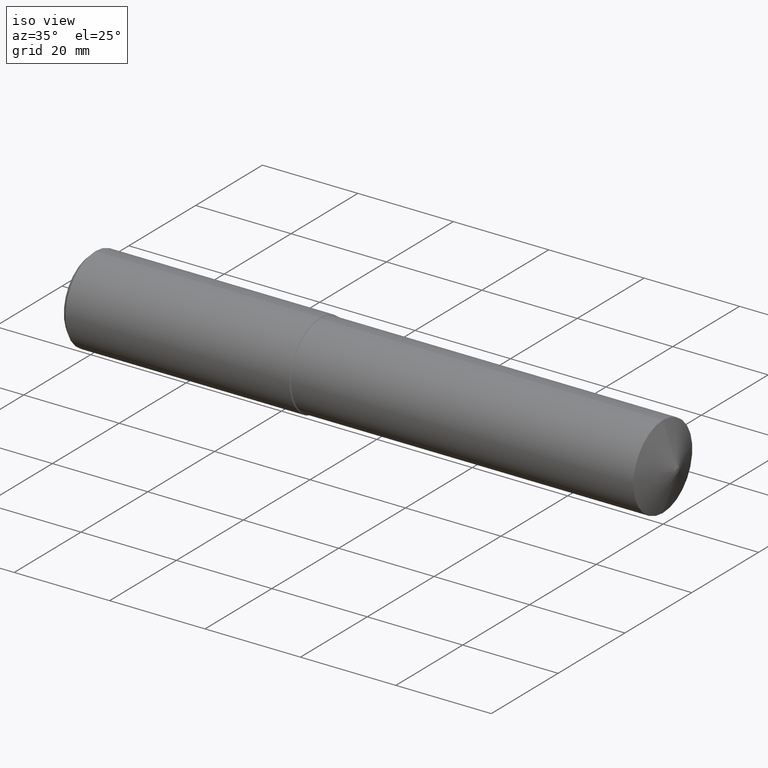
[diagram: clean part render]
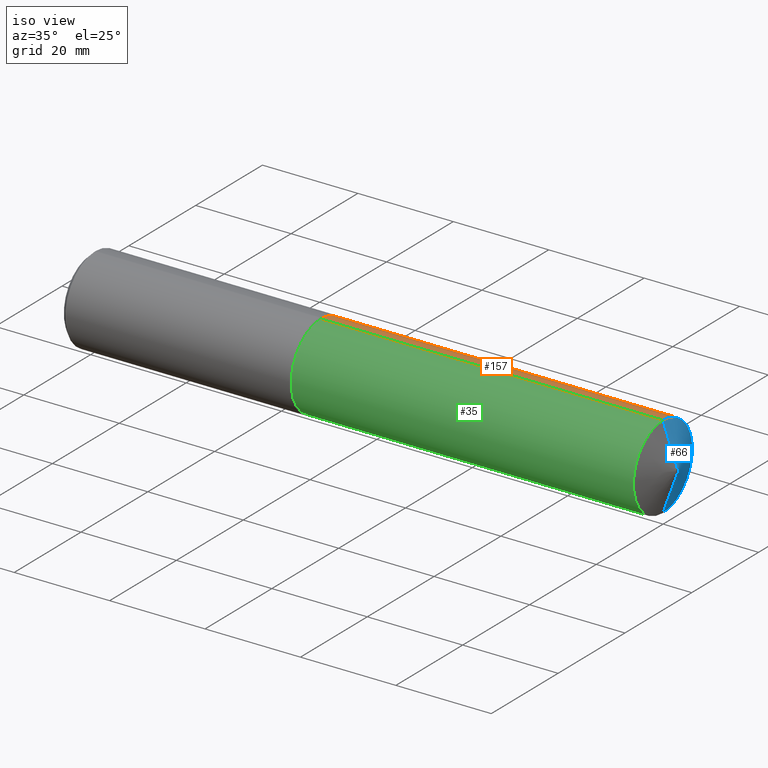
[diagram: same view with three faces highlighted in distinct colors, each labeled with its STEP entity id]
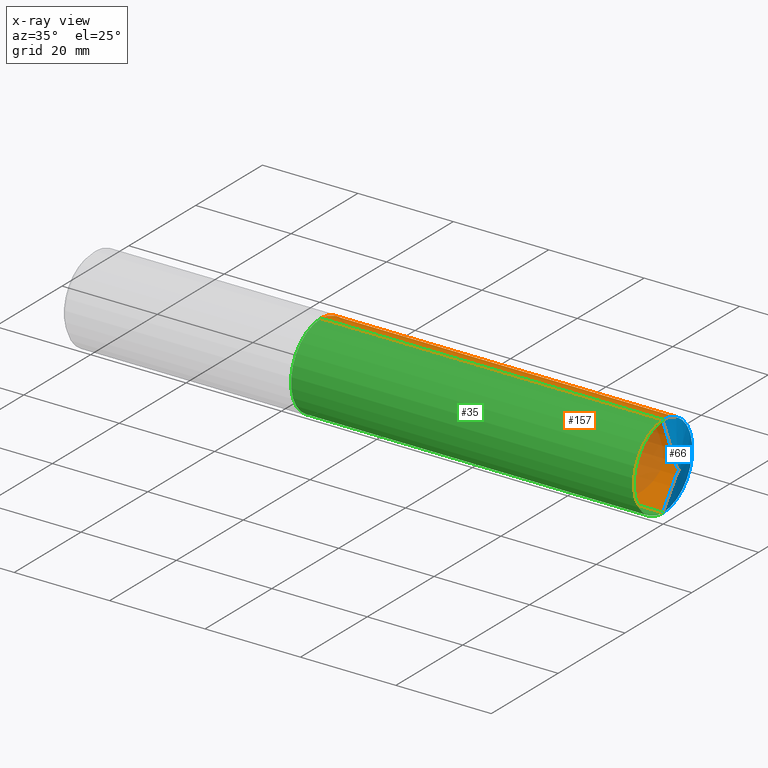
[diagram: x-ray of the same camera — body ghosted, the three highlighted faces saturated]
A machine part, iso view with three faces highlighted in distinct colors.
The next image is the same camera in x-ray (body ghosted, the three faces saturated) — at least one of them is partly hidden behind the body in this view.
Their STEP definitions:

[orange] entity #157 — the highlighted cylindrical surface (partial cylindrical patch) has radius 8.8011 mm, axis along (1, -0, -0).
#8 = DIRECTION ( 'NONE',  ( 1.000000000000000000, -0.000000000000000000, -0.000000000000000000 ) ) ;
#13 = LINE ( 'NONE', #108, #111 ) ;
#14 = VERTEX_POINT ( 'NONE', #299 ) ;
#18 = ORIENTED_EDGE ( 'NONE', *, *, #342, .T. ) ;
#20 = CARTESIAN_POINT ( 'NONE',  ( -0.03808593750000075634, 4.243401159045583642E-17, 0.3465000000000003633 ) ) ;
#23 = DIRECTION ( 'NONE',  ( 1.000000000000000000, -0.000000000000000000, -0.000000000000000000 ) ) ;
#34 = CYLINDRICAL_SURFACE ( 'NONE', #117, 0.3465000000000003633 ) ;
#49 = DIRECTION ( 'NONE',  ( 1.000000000000000000, -0.000000000000000000, -0.000000000000000000 ) ) ;
#76 = AXIS2_PLACEMENT_3D ( 'NONE', #163, #336, #129 ) ;
#108 = CARTESIAN_POINT ( 'NONE',  ( -0.03808593750000075634, 0.000000000000000000, -0.3465000000000003633 ) ) ;
#111 = VECTOR ( 'NONE', #49, 39.37007874015748143 ) ;
#117 = AXIS2_PLACEMENT_3D ( 'NONE', #184, #8, #124 ) ;
#124 = DIRECTION ( 'NONE',  ( 0.000000000000000000, 0.000000000000000000, -1.000000000000000000 ) ) ;
#129 = DIRECTION ( 'NONE',  ( 0.000000000000000000, 0.000000000000000000, -1.000000000000000000 ) ) ;
#131 = CARTESIAN_POINT ( 'NONE',  ( 1.897594488188976802, 0.000000000000000000, 0.000000000000000000 ) ) ;
#134 = DIRECTION ( 'NONE',  ( 0.000000000000000000, 0.000000000000000000, -1.000000000000000000 ) ) ;
#141 = VERTEX_POINT ( 'NONE', #182 ) ;
#145 = CARTESIAN_POINT ( 'NONE',  ( 4.722773477965789723, 4.243401159045585491E-17, -0.3465000000000006408 ) ) ;
#157 = ADVANCED_FACE ( 'NONE', ( #298 ), #34, .T. ) ;
#158 = CARTESIAN_POINT ( 'NONE',  ( 4.722773477965789723, 0.000000000000000000, 0.3465000000000006408 ) ) ;
#163 = CARTESIAN_POINT ( 'NONE',  ( 4.722773477965789723, 0.000000000000000000, 0.000000000000000000 ) ) ;
#168 = DIRECTION ( 'NONE',  ( 1.000000000000000000, -0.000000000000000000, -0.000000000000000000 ) ) ;
#173 = VERTEX_POINT ( 'NONE', #158 ) ;
#179 = VECTOR ( 'NONE', #23, 39.37007874015748143 ) ;
#182 = CARTESIAN_POINT ( 'NONE',  ( 1.897594488188976802, 0.000000000000000000, -0.3465000000000001967 ) ) ;
#184 = CARTESIAN_POINT ( 'NONE',  ( -0.03808593750000075634, 0.000000000000000000, 0.000000000000000000 ) ) ;
#197 = CIRCLE ( 'NONE', #76, 0.3465000000000005298 ) ;
#213 = AXIS2_PLACEMENT_3D ( 'NONE', #131, #168, #134 ) ;
#229 = ORIENTED_EDGE ( 'NONE', *, *, #251, .F. ) ;
#246 = EDGE_LOOP ( 'NONE', ( #310, #18, #340, #229 ) ) ;
#247 = LINE ( 'NONE', #20, #179 ) ;
#251 = EDGE_CURVE ( 'NONE', #141, #360, #13, .T. ) ;
#257 = EDGE_CURVE ( 'NONE', #360, #173, #197, .T. ) ;
#265 = EDGE_CURVE ( 'NONE', #141, #14, #289, .T. ) ;
#289 = CIRCLE ( 'NONE', #213, 0.3465000000000001967 ) ;
#298 = FACE_OUTER_BOUND ( 'NONE', #246, .T. ) ;
#299 = CARTESIAN_POINT ( 'NONE',  ( 1.897594488188976802, 4.243401159045583025E-17, 0.3465000000000001967 ) ) ;
#310 = ORIENTED_EDGE ( 'NONE', *, *, #265, .T. ) ;
#336 = DIRECTION ( 'NONE',  ( 1.000000000000000000, -0.000000000000000000, -0.000000000000000000 ) ) ;
#340 = ORIENTED_EDGE ( 'NONE', *, *, #257, .F. ) ;
#342 = EDGE_CURVE ( 'NONE', #14, #173, #247, .T. ) ;
#360 = VERTEX_POINT ( 'NONE', #145 ) ;

[blue] entity #66 — the highlighted conical surface has half-angle 70 deg.
#11 = CIRCLE ( 'NONE', #286, 0.01750000000000059841 ) ;
#24 = ORIENTED_EDGE ( 'NONE', *, *, #216, .F. ) ;
#46 = DIRECTION ( 'NONE',  ( -0.3420201433256673806, 1.150791560227850763E-16, -0.9396926207859088720 ) ) ;
#48 = ORIENTED_EDGE ( 'NONE', *, *, #202, .T. ) ;
#66 = ADVANCED_FACE ( 'NONE', ( #235 ), #121, .T. ) ;
#67 = CARTESIAN_POINT ( 'NONE',  ( 4.842519685039370358, 0.000000000000000000, 0.000000000000000000 ) ) ;
#71 = DIRECTION ( 'NONE',  ( -1.000000000000000000, 0.000000000000000000, 0.000000000000000000 ) ) ;
#76 = AXIS2_PLACEMENT_3D ( 'NONE', #163, #336, #129 ) ;
#79 = VERTEX_POINT ( 'NONE', #208 ) ;
#90 = VECTOR ( 'NONE', #46, 39.37007874015748143 ) ;
#92 = CARTESIAN_POINT ( 'NONE',  ( 4.842519685039370358, 0.000000000000000000, 0.000000000000000000 ) ) ;
#95 = DIRECTION ( 'NONE',  ( 1.000000000000000000, -0.000000000000000000, -0.000000000000000000 ) ) ;
#109 = EDGE_LOOP ( 'NONE', ( #302, #48, #334, #24 ) ) ;
#121 = CONICAL_SURFACE ( 'NONE', #373, 0.01750000000000059841, 1.221730476396032161 ) ;
#129 = DIRECTION ( 'NONE',  ( 0.000000000000000000, 0.000000000000000000, -1.000000000000000000 ) ) ;
#145 = CARTESIAN_POINT ( 'NONE',  ( 4.722773477965789723, 4.243401159045585491E-17, -0.3465000000000006408 ) ) ;
#149 = EDGE_CURVE ( 'NONE', #256, #79, #11, .T. ) ;
#158 = CARTESIAN_POINT ( 'NONE',  ( 4.722773477965789723, 0.000000000000000000, 0.3465000000000006408 ) ) ;
#160 = VECTOR ( 'NONE', #190, 39.37007874015748143 ) ;
#163 = CARTESIAN_POINT ( 'NONE',  ( 4.722773477965789723, 0.000000000000000000, 0.000000000000000000 ) ) ;
#173 = VERTEX_POINT ( 'NONE', #158 ) ;
#190 = DIRECTION ( 'NONE',  ( -0.3420201433256673806, 0.000000000000000000, 0.9396926207859088720 ) ) ;
#197 = CIRCLE ( 'NONE', #76, 0.3465000000000005298 ) ;
#202 = EDGE_CURVE ( 'NONE', #256, #360, #369, .T. ) ;
#208 = CARTESIAN_POINT ( 'NONE',  ( 4.842519685039370358, 0.000000000000000000, 0.01750000000000059841 ) ) ;
#216 = EDGE_CURVE ( 'NONE', #79, #173, #219, .T. ) ;
#219 = LINE ( 'NONE', #227, #160 ) ;
#225 = CARTESIAN_POINT ( 'NONE',  ( 4.842519685039370358, 2.228857174448189611E-17, -0.01750000000000059841 ) ) ;
#227 = CARTESIAN_POINT ( 'NONE',  ( 4.842519685039370358, 0.000000000000000000, 0.01750000000000059841 ) ) ;
#235 = FACE_OUTER_BOUND ( 'NONE', #109, .T. ) ;
#249 = CARTESIAN_POINT ( 'NONE',  ( 4.842519685039370358, 2.143131898507941560E-18, -0.01750000000000059841 ) ) ;
#256 = VERTEX_POINT ( 'NONE', #225 ) ;
#257 = EDGE_CURVE ( 'NONE', #360, #173, #197, .T. ) ;
#267 = DIRECTION ( 'NONE',  ( 0.000000000000000000, 0.000000000000000000, 1.000000000000000000 ) ) ;
#286 = AXIS2_PLACEMENT_3D ( 'NONE', #67, #95, #294 ) ;
#294 = DIRECTION ( 'NONE',  ( 0.000000000000000000, 0.000000000000000000, -1.000000000000000000 ) ) ;
#302 = ORIENTED_EDGE ( 'NONE', *, *, #149, .F. ) ;
#334 = ORIENTED_EDGE ( 'NONE', *, *, #257, .T. ) ;
#336 = DIRECTION ( 'NONE',  ( 1.000000000000000000, -0.000000000000000000, -0.000000000000000000 ) ) ;
#360 = VERTEX_POINT ( 'NONE', #145 ) ;
#369 = LINE ( 'NONE', #249, #90 ) ;
#373 = AXIS2_PLACEMENT_3D ( 'NONE', #92, #71, #267 ) ;

[green] entity #35 — the highlighted cylindrical surface (partial cylindrical patch) has radius 8.8011 mm, axis along (1, -0, -0).
#3 = CYLINDRICAL_SURFACE ( 'NONE', #207, 0.3465000000000003633 ) ;
#13 = LINE ( 'NONE', #108, #111 ) ;
#14 = VERTEX_POINT ( 'NONE', #299 ) ;
#20 = CARTESIAN_POINT ( 'NONE',  ( -0.03808593750000075634, 4.243401159045583642E-17, 0.3465000000000003633 ) ) ;
#23 = DIRECTION ( 'NONE',  ( 1.000000000000000000, -0.000000000000000000, -0.000000000000000000 ) ) ;
#35 = ADVANCED_FACE ( 'NONE', ( #156 ), #3, .T. ) ;
#49 = DIRECTION ( 'NONE',  ( 1.000000000000000000, -0.000000000000000000, -0.000000000000000000 ) ) ;
#74 = DIRECTION ( 'NONE',  ( 0.000000000000000000, 0.000000000000000000, -1.000000000000000000 ) ) ;
#106 = EDGE_LOOP ( 'NONE', ( #252, #317, #113, #223 ) ) ;
#108 = CARTESIAN_POINT ( 'NONE',  ( -0.03808593750000075634, 0.000000000000000000, -0.3465000000000003633 ) ) ;
#111 = VECTOR ( 'NONE', #49, 39.37007874015748143 ) ;
#113 = ORIENTED_EDGE ( 'NONE', *, *, #251, .T. ) ;
#141 = VERTEX_POINT ( 'NONE', #182 ) ;
#145 = CARTESIAN_POINT ( 'NONE',  ( 4.722773477965789723, 4.243401159045585491E-17, -0.3465000000000006408 ) ) ;
#147 = CARTESIAN_POINT ( 'NONE',  ( 1.897594488188976802, 0.000000000000000000, 0.000000000000000000 ) ) ;
#155 = CIRCLE ( 'NONE', #357, 0.3465000000000001967 ) ;
#156 = FACE_OUTER_BOUND ( 'NONE', #106, .T. ) ;
#158 = CARTESIAN_POINT ( 'NONE',  ( 4.722773477965789723, 0.000000000000000000, 0.3465000000000006408 ) ) ;
#172 = DIRECTION ( 'NONE',  ( 0.000000000000000000, 0.000000000000000000, -1.000000000000000000 ) ) ;
#173 = VERTEX_POINT ( 'NONE', #158 ) ;
#179 = VECTOR ( 'NONE', #23, 39.37007874015748143 ) ;
#182 = CARTESIAN_POINT ( 'NONE',  ( 1.897594488188976802, 0.000000000000000000, -0.3465000000000001967 ) ) ;
#207 = AXIS2_PLACEMENT_3D ( 'NONE', #324, #237, #264 ) ;
#220 = CIRCLE ( 'NONE', #261, 0.3465000000000005298 ) ;
#223 = ORIENTED_EDGE ( 'NONE', *, *, #330, .F. ) ;
#237 = DIRECTION ( 'NONE',  ( 1.000000000000000000, -0.000000000000000000, -0.000000000000000000 ) ) ;
#247 = LINE ( 'NONE', #20, #179 ) ;
#251 = EDGE_CURVE ( 'NONE', #141, #360, #13, .T. ) ;
#252 = ORIENTED_EDGE ( 'NONE', *, *, #342, .F. ) ;
#260 = DIRECTION ( 'NONE',  ( 1.000000000000000000, -0.000000000000000000, -0.000000000000000000 ) ) ;
#261 = AXIS2_PLACEMENT_3D ( 'NONE', #335, #274, #74 ) ;
#264 = DIRECTION ( 'NONE',  ( 0.000000000000000000, 0.000000000000000000, -1.000000000000000000 ) ) ;
#274 = DIRECTION ( 'NONE',  ( 1.000000000000000000, -0.000000000000000000, -0.000000000000000000 ) ) ;
#299 = CARTESIAN_POINT ( 'NONE',  ( 1.897594488188976802, 4.243401159045583025E-17, 0.3465000000000001967 ) ) ;
#317 = ORIENTED_EDGE ( 'NONE', *, *, #375, .T. ) ;
#324 = CARTESIAN_POINT ( 'NONE',  ( -0.03808593750000075634, 0.000000000000000000, 0.000000000000000000 ) ) ;
#330 = EDGE_CURVE ( 'NONE', #173, #360, #220, .T. ) ;
#335 = CARTESIAN_POINT ( 'NONE',  ( 4.722773477965789723, 0.000000000000000000, 0.000000000000000000 ) ) ;
#342 = EDGE_CURVE ( 'NONE', #14, #173, #247, .T. ) ;
#357 = AXIS2_PLACEMENT_3D ( 'NONE', #147, #260, #172 ) ;
#360 = VERTEX_POINT ( 'NONE', #145 ) ;
#375 = EDGE_CURVE ( 'NONE', #14, #141, #155, .T. ) ;